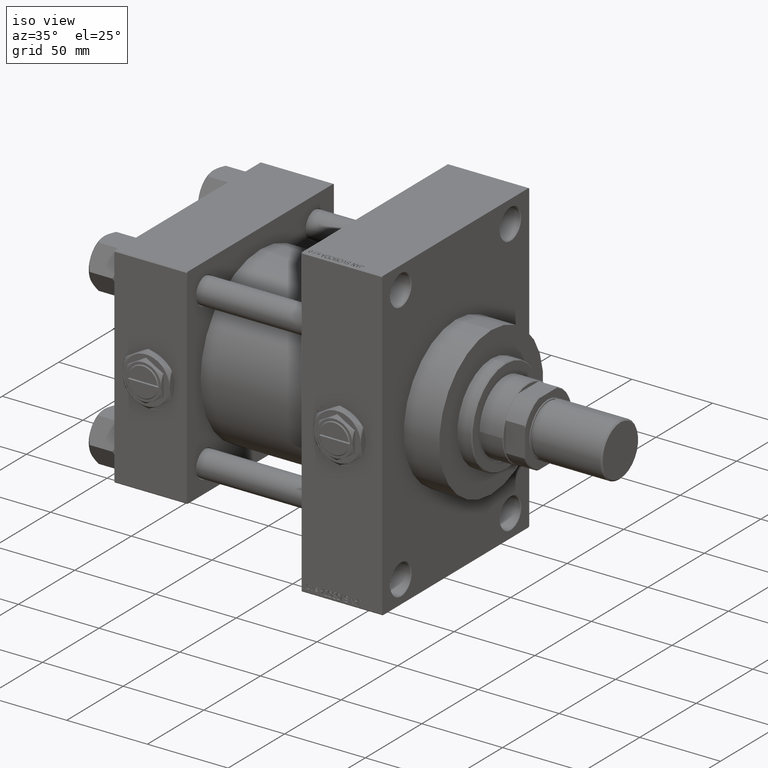
[diagram: clean part render]
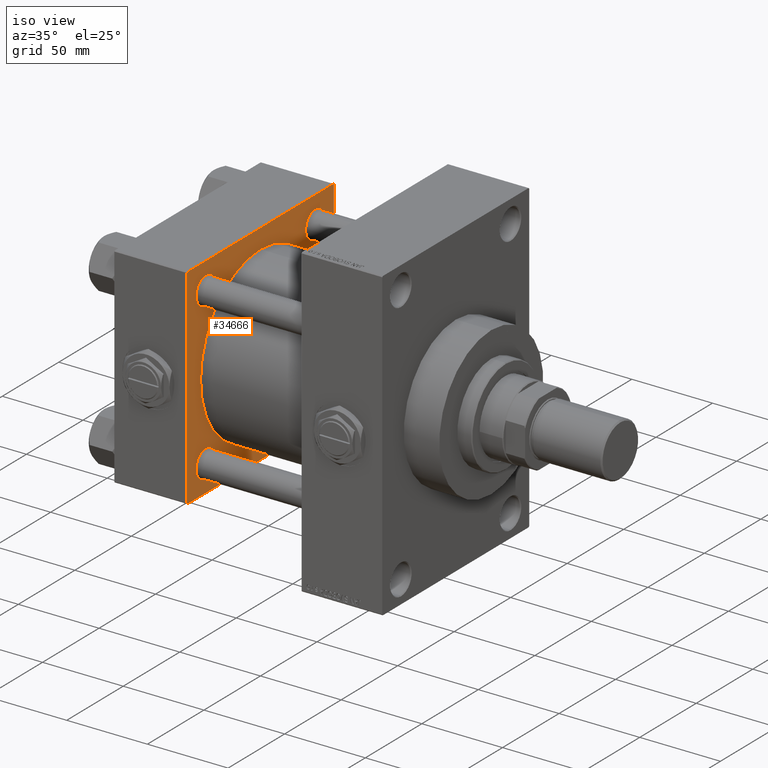
[diagram: same view with one face highlighted and labeled with its STEP entity id]
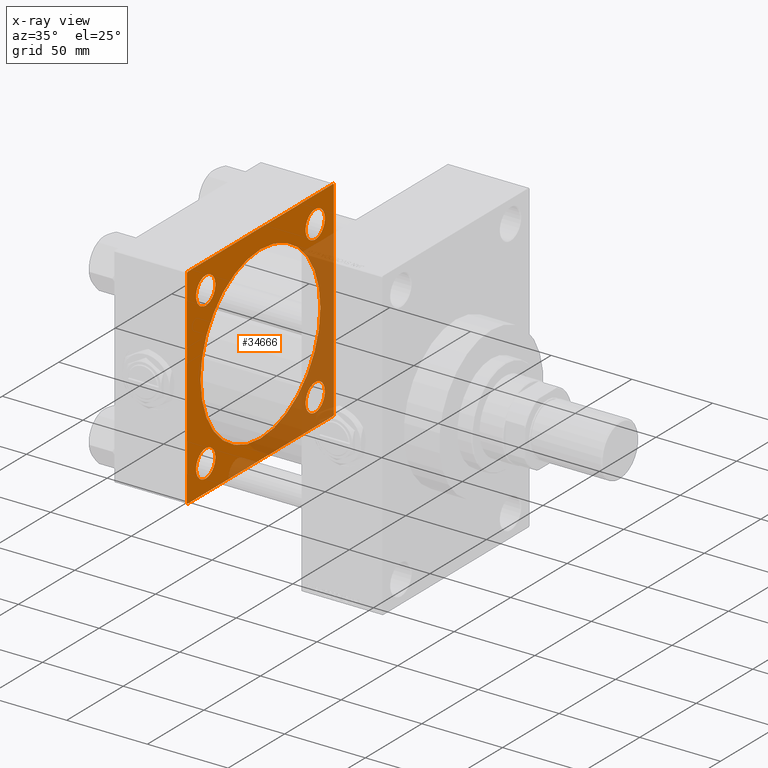
[diagram: x-ray of the same camera — body ghosted, the highlighted face saturated]
A machine part, iso view. The second image highlights one B-rep face of the part: STEP entity #34666.
The next image is the same camera in x-ray: the body ghosted, the highlighted face saturated — about 36% of this face is hidden behind the body in this view.
In plain terms, the highlighted planar face has unit normal (-1, 0, 0).
Its self-contained STEP definition (entity closure, byte-faithful):
#442 = LINE ( 'NONE', #15188, #39818 ) ;
#717 = DIRECTION ( 'NONE',  ( 0.000000000000000000, -1.000000000000000000, -1.067522139062650425E-16 ) ) ;
#1062 = VERTEX_POINT ( 'NONE', #31897 ) ;
#1688 = EDGE_CURVE ( 'NONE', #1062, #37927, #11887, .T. ) ;
#2434 = CARTESIAN_POINT ( 'NONE',  ( 45.00000000000000000, -65.00000000000000000, 64.50000000000000000 ) ) ;
#2763 = EDGE_LOOP ( 'NONE', ( #27315, #7258 ) ) ;
#2826 = VECTOR ( 'NONE', #39338, 1000.000000000000000 ) ;
#3393 = ORIENTED_EDGE ( 'NONE', *, *, #48283, .T. ) ;
#3648 = VERTEX_POINT ( 'NONE', #3854 ) ;
#3854 = CARTESIAN_POINT ( 'NONE',  ( 45.00000000000000000, 3.888542821515762466E-15, -53.00000000000000711 ) ) ;
#4014 = FACE_BOUND ( 'NONE', #2763, .T. ) ;
#4017 = DIRECTION ( 'NONE',  ( -1.000000000000000000, 0.000000000000000000, -0.000000000000000000 ) ) ;
#4499 = DIRECTION ( 'NONE',  ( 0.000000000000000000, 0.000000000000000000, 1.000000000000000000 ) ) ;
#4815 = EDGE_CURVE ( 'NONE', #1062, #10689, #6591, .T. ) ;
#5912 = DIRECTION ( 'NONE',  ( 0.000000000000000000, 0.000000000000000000, 1.000000000000000000 ) ) ;
#6000 = AXIS2_PLACEMENT_3D ( 'NONE', #32425, #47911, #28599 ) ;
#6397 = CIRCLE ( 'NONE', #9659, 8.500000000000007105 ) ;
#6591 = LINE ( 'NONE', #22078, #39237 ) ;
#6634 = CIRCLE ( 'NONE', #17969, 53.00000000000000711 ) ;
#7258 = ORIENTED_EDGE ( 'NONE', *, *, #35864, .T. ) ;
#8327 = DIRECTION ( 'NONE',  ( 0.000000000000000000, 0.000000000000000000, 1.000000000000000000 ) ) ;
#8792 = LINE ( 'NONE', #12602, #20314 ) ;
#8819 = CARTESIAN_POINT ( 'NONE',  ( 45.00000000000000000, 65.00000000000000000, -64.99999999999998579 ) ) ;
#9659 = AXIS2_PLACEMENT_3D ( 'NONE', #48728, #49492, #17724 ) ;
#9830 = CARTESIAN_POINT ( 'NONE',  ( 45.00000000000000000, -2.602085213965210642E-15, 0.000000000000000000 ) ) ;
#10218 = EDGE_CURVE ( 'NONE', #16284, #40444, #28929, .T. ) ;
#10307 = CARTESIAN_POINT ( 'NONE',  ( 45.00000000000000000, -64.49999999999997158, 65.00000000000000000 ) ) ;
#10429 = CIRCLE ( 'NONE', #25026, 8.500000000000007105 ) ;
#10689 = VERTEX_POINT ( 'NONE', #10933 ) ;
#10933 = CARTESIAN_POINT ( 'NONE',  ( 45.00000000000000000, 65.00000000000000000, -64.49999999999995737 ) ) ;
#10966 = CARTESIAN_POINT ( 'NONE',  ( 45.00000000000000000, 48.45000000000000995, -48.45000000000001705 ) ) ;
#11133 = DIRECTION ( 'NONE',  ( -0.000000000000000000, -0.7071067811865672237, -0.7071067811865279218 ) ) ;
#11201 = VECTOR ( 'NONE', #47888, 1000.000000000000000 ) ;
#11268 = VERTEX_POINT ( 'NONE', #10307 ) ;
#11625 = CARTESIAN_POINT ( 'NONE',  ( 45.00000000000000000, 0.000000000000000000, 0.000000000000000000 ) ) ;
#11699 = CARTESIAN_POINT ( 'NONE',  ( 45.00000000000000000, 48.45000000000000995, 48.45000000000001705 ) ) ;
#11887 = LINE ( 'NONE', #8819, #21265 ) ;
#12406 = DIRECTION ( 'NONE',  ( 0.000000000000000000, 0.000000000000000000, 1.000000000000000000 ) ) ;
#12602 = CARTESIAN_POINT ( 'NONE',  ( 45.00000000000000000, -64.49999999999994316, -65.00000000000000000 ) ) ;
#13282 = CIRCLE ( 'NONE', #41721, 8.500000000000007105 ) ;
#13417 = CARTESIAN_POINT ( 'NONE',  ( 45.00000000000000000, -64.49999999999994316, -65.00000000000000000 ) ) ;
#13530 = CIRCLE ( 'NONE', #32998, 8.500000000000007105 ) ;
#14371 = CARTESIAN_POINT ( 'NONE',  ( 45.00000000000000000, 64.49999999999997158, 65.00000000000001421 ) ) ;
#14463 = EDGE_CURVE ( 'NONE', #21431, #34734, #13530, .T. ) ;
#14882 = ORIENTED_EDGE ( 'NONE', *, *, #27381, .F. ) ;
#15029 = EDGE_CURVE ( 'NONE', #18574, #33845, #21663, .T. ) ;
#15181 = CARTESIAN_POINT ( 'NONE',  ( 45.00000000000000000, 65.00000000000000000, 64.49999999999998579 ) ) ;
#15188 = CARTESIAN_POINT ( 'NONE',  ( 45.00000000000000000, 65.00000000000000000, 65.00000000000001421 ) ) ;
#15725 = DIRECTION ( 'NONE',  ( -1.000000000000000000, 0.000000000000000000, -0.000000000000000000 ) ) ;
#15916 = DIRECTION ( 'NONE',  ( 0.000000000000000000, 0.000000000000000000, -1.000000000000000000 ) ) ;
#16284 = VERTEX_POINT ( 'NONE', #45749 ) ;
#16593 = CARTESIAN_POINT ( 'NONE',  ( 45.00000000000000000, 48.45000000000000995, 56.95000000000002416 ) ) ;
#17382 = CIRCLE ( 'NONE', #23876, 8.500000000000007105 ) ;
#17581 = CARTESIAN_POINT ( 'NONE',  ( 45.00000000000000000, -2.602085213965210642E-15, 53.00000000000000711 ) ) ;
#17724 = DIRECTION ( 'NONE',  ( 0.000000000000000000, 0.000000000000000000, 1.000000000000000000 ) ) ;
#17836 = VERTEX_POINT ( 'NONE', #17581 ) ;
#17969 = AXIS2_PLACEMENT_3D ( 'NONE', #9830, #36262, #43897 ) ;
#18260 = DIRECTION ( 'NONE',  ( -0.000000000000000000, 0.7071067811865474617, 0.7071067811865474617 ) ) ;
#18574 = VERTEX_POINT ( 'NONE', #31706 ) ;
#19283 = EDGE_LOOP ( 'NONE', ( #19485, #49367, #14882, #32598, #28527, #26303, #34959, #29321 ) ) ;
#19485 = ORIENTED_EDGE ( 'NONE', *, *, #1688, .F. ) ;
#19926 = CARTESIAN_POINT ( 'NONE',  ( 45.00000000000000000, 64.49999999999997158, 65.00000000000001421 ) ) ;
#20314 = VECTOR ( 'NONE', #43625, 1000.000000000000000 ) ;
#20478 = CARTESIAN_POINT ( 'NONE',  ( 45.00000000000000000, -48.44999999999999574, 39.95000000000001705 ) ) ;
#21265 = VECTOR ( 'NONE', #717, 1000.000000000000000 ) ;
#21431 = VERTEX_POINT ( 'NONE', #45170 ) ;
#21656 = DIRECTION ( 'NONE',  ( 0.000000000000000000, 0.000000000000000000, 1.000000000000000000 ) ) ;
#21663 = CIRCLE ( 'NONE', #28150, 8.500000000000007105 ) ;
#21681 = CARTESIAN_POINT ( 'NONE',  ( 45.00000000000000000, -65.00000000000000000, -64.49999999999991473 ) ) ;
#21994 = LINE ( 'NONE', #14371, #44951 ) ;
#22078 = CARTESIAN_POINT ( 'NONE',  ( 45.00000000000000000, 65.00000000000000000, -64.49999999999995737 ) ) ;
#22656 = CARTESIAN_POINT ( 'NONE',  ( 45.00000000000000000, 65.00000000000000000, 65.00000000000001421 ) ) ;
#23071 = FACE_BOUND ( 'NONE', #28408, .T. ) ;
#23309 = VERTEX_POINT ( 'NONE', #48482 ) ;
#23318 = DIRECTION ( 'NONE',  ( -0.000000000000000000, 0.000000000000000000, 1.000000000000000000 ) ) ;
#23876 = AXIS2_PLACEMENT_3D ( 'NONE', #34363, #49857, #30556 ) ;
#24054 = AXIS2_PLACEMENT_3D ( 'NONE', #48856, #37432, #5912 ) ;
#24164 = EDGE_LOOP ( 'NONE', ( #41522, #40006 ) ) ;
#24189 = CIRCLE ( 'NONE', #30725, 8.500000000000007105 ) ;
#24955 = DIRECTION ( 'NONE',  ( -1.000000000000000000, 0.000000000000000000, -0.000000000000000000 ) ) ;
#25026 = AXIS2_PLACEMENT_3D ( 'NONE', #47842, #24955, #21656 ) ;
#26116 = LINE ( 'NONE', #45196, #26319 ) ;
#26277 = EDGE_LOOP ( 'NONE', ( #3393, #38937 ) ) ;
#26303 = ORIENTED_EDGE ( 'NONE', *, *, #38143, .T. ) ;
#26319 = VECTOR ( 'NONE', #11133, 1000.000000000000000 ) ;
#26463 = DIRECTION ( 'NONE',  ( -1.000000000000000000, 0.000000000000000000, -0.000000000000000000 ) ) ;
#27129 = DIRECTION ( 'NONE',  ( -1.000000000000000000, 0.000000000000000000, -0.000000000000000000 ) ) ;
#27202 = DIRECTION ( 'NONE',  ( 0.000000000000000000, 0.000000000000000000, 1.000000000000000000 ) ) ;
#27315 = ORIENTED_EDGE ( 'NONE', *, *, #15029, .T. ) ;
#27381 = EDGE_CURVE ( 'NONE', #32539, #10689, #442, .T. ) ;
#27478 = EDGE_CURVE ( 'NONE', #33880, #37927, #8792, .T. ) ;
#28150 = AXIS2_PLACEMENT_3D ( 'NONE', #11699, #38908, #27202 ) ;
#28408 = EDGE_LOOP ( 'NONE', ( #28876, #28470 ) ) ;
#28470 = ORIENTED_EDGE ( 'NONE', *, *, #34985, .T. ) ;
#28486 = VERTEX_POINT ( 'NONE', #42830 ) ;
#28527 = ORIENTED_EDGE ( 'NONE', *, *, #35009, .T. ) ;
#28576 = CARTESIAN_POINT ( 'NONE',  ( 45.00000000000000000, -65.00000000000000000, 65.00000000000000000 ) ) ;
#28599 = DIRECTION ( 'NONE',  ( 0.000000000000000000, 0.000000000000000000, 1.000000000000000000 ) ) ;
#28678 = VERTEX_POINT ( 'NONE', #19926 ) ;
#28876 = ORIENTED_EDGE ( 'NONE', *, *, #47717, .T. ) ;
#28929 = CIRCLE ( 'NONE', #24054, 8.500000000000007105 ) ;
#29321 = ORIENTED_EDGE ( 'NONE', *, *, #27478, .T. ) ;
#29832 = EDGE_CURVE ( 'NONE', #17836, #3648, #6634, .T. ) ;
#30463 = FACE_BOUND ( 'NONE', #26277, .T. ) ;
#30556 = DIRECTION ( 'NONE',  ( 0.000000000000000000, 0.000000000000000000, 1.000000000000000000 ) ) ;
#30725 = AXIS2_PLACEMENT_3D ( 'NONE', #33809, #15725, #12406 ) ;
#30960 = FACE_BOUND ( 'NONE', #43670, .T. ) ;
#31706 = CARTESIAN_POINT ( 'NONE',  ( 45.00000000000000000, 48.45000000000000995, 39.95000000000000284 ) ) ;
#31897 = CARTESIAN_POINT ( 'NONE',  ( 45.00000000000000000, 64.49999999999997158, -64.99999999999998579 ) ) ;
#32425 = CARTESIAN_POINT ( 'NONE',  ( 45.00000000000000000, -2.602085213965210642E-15, 0.000000000000000000 ) ) ;
#32539 = VERTEX_POINT ( 'NONE', #15181 ) ;
#32598 = ORIENTED_EDGE ( 'NONE', *, *, #33519, .T. ) ;
#32682 = VERTEX_POINT ( 'NONE', #2434 ) ;
#32998 = AXIS2_PLACEMENT_3D ( 'NONE', #43141, #4017, #4499 ) ;
#33519 = EDGE_CURVE ( 'NONE', #32539, #28678, #21994, .T. ) ;
#33809 = CARTESIAN_POINT ( 'NONE',  ( 45.00000000000000000, -48.44999999999999574, 48.45000000000003126 ) ) ;
#33845 = VERTEX_POINT ( 'NONE', #16593 ) ;
#33848 = LINE ( 'NONE', #22656, #2826 ) ;
#33880 = VERTEX_POINT ( 'NONE', #21681 ) ;
#33926 = ORIENTED_EDGE ( 'NONE', *, *, #29832, .F. ) ;
#34273 = FACE_BOUND ( 'NONE', #24164, .T. ) ;
#34363 = CARTESIAN_POINT ( 'NONE',  ( 45.00000000000000000, 48.45000000000000995, 48.45000000000001705 ) ) ;
#34666 = ADVANCED_FACE ( 'NONE', ( #34273, #23071, #30463, #4014, #30960, #45456 ), #46455, .F. ) ;
#34734 = VERTEX_POINT ( 'NONE', #20478 ) ;
#34959 = ORIENTED_EDGE ( 'NONE', *, *, #46759, .T. ) ;
#34985 = EDGE_CURVE ( 'NONE', #28486, #23309, #13282, .T. ) ;
#35009 = EDGE_CURVE ( 'NONE', #28678, #11268, #33848, .T. ) ;
#35236 = ORIENTED_EDGE ( 'NONE', *, *, #37732, .F. ) ;
#35864 = EDGE_CURVE ( 'NONE', #33845, #18574, #17382, .T. ) ;
#36262 = DIRECTION ( 'NONE',  ( 1.000000000000000000, -0.000000000000000000, 0.000000000000000000 ) ) ;
#36456 = LINE ( 'NONE', #28576, #11201 ) ;
#36838 = CIRCLE ( 'NONE', #6000, 53.00000000000000711 ) ;
#37432 = DIRECTION ( 'NONE',  ( -1.000000000000000000, 0.000000000000000000, -0.000000000000000000 ) ) ;
#37732 = EDGE_CURVE ( 'NONE', #3648, #17836, #36838, .T. ) ;
#37927 = VERTEX_POINT ( 'NONE', #13417 ) ;
#38143 = EDGE_CURVE ( 'NONE', #11268, #32682, #26116, .T. ) ;
#38908 = DIRECTION ( 'NONE',  ( -1.000000000000000000, 0.000000000000000000, -0.000000000000000000 ) ) ;
#38937 = ORIENTED_EDGE ( 'NONE', *, *, #14463, .T. ) ;
#39237 = VECTOR ( 'NONE', #18260, 1000.000000000000114 ) ;
#39338 = DIRECTION ( 'NONE',  ( 0.000000000000000000, -1.000000000000000000, -1.067522139062650425E-16 ) ) ;
#39818 = VECTOR ( 'NONE', #15916, 1000.000000000000000 ) ;
#40006 = ORIENTED_EDGE ( 'NONE', *, *, #48518, .T. ) ;
#40444 = VERTEX_POINT ( 'NONE', #49907 ) ;
#41522 = ORIENTED_EDGE ( 'NONE', *, *, #10218, .T. ) ;
#41721 = AXIS2_PLACEMENT_3D ( 'NONE', #10966, #26463, #8327 ) ;
#42830 = CARTESIAN_POINT ( 'NONE',  ( 45.00000000000000000, 48.45000000000000995, -39.95000000000000284 ) ) ;
#43141 = CARTESIAN_POINT ( 'NONE',  ( 45.00000000000000000, -48.44999999999999574, 48.45000000000003126 ) ) ;
#43625 = DIRECTION ( 'NONE',  ( 0.000000000000000000, 0.7071067811865279218, -0.7071067811865671127 ) ) ;
#43670 = EDGE_LOOP ( 'NONE', ( #33926, #35236 ) ) ;
#43897 = DIRECTION ( 'NONE',  ( 0.000000000000000000, 0.000000000000000000, 1.000000000000000000 ) ) ;
#44951 = VECTOR ( 'NONE', #45388, 1000.000000000000114 ) ;
#44987 = AXIS2_PLACEMENT_3D ( 'NONE', #11625, #27129, #23318 ) ;
#45170 = CARTESIAN_POINT ( 'NONE',  ( 45.00000000000000000, -48.44999999999999574, 56.95000000000003837 ) ) ;
#45196 = CARTESIAN_POINT ( 'NONE',  ( 45.00000000000000000, -65.00000000000000000, 64.50000000000000000 ) ) ;
#45388 = DIRECTION ( 'NONE',  ( 0.000000000000000000, -0.7071067811865474617, 0.7071067811865474617 ) ) ;
#45456 = FACE_OUTER_BOUND ( 'NONE', #19283, .T. ) ;
#45749 = CARTESIAN_POINT ( 'NONE',  ( 45.00000000000000000, -48.44999999999999574, -56.95000000000003837 ) ) ;
#46455 = PLANE ( 'NONE',  #44987 ) ;
#46759 = EDGE_CURVE ( 'NONE', #32682, #33880, #36456, .T. ) ;
#47717 = EDGE_CURVE ( 'NONE', #23309, #28486, #10429, .T. ) ;
#47842 = CARTESIAN_POINT ( 'NONE',  ( 45.00000000000000000, 48.45000000000000995, -48.45000000000001705 ) ) ;
#47888 = DIRECTION ( 'NONE',  ( 0.000000000000000000, 0.000000000000000000, -1.000000000000000000 ) ) ;
#47911 = DIRECTION ( 'NONE',  ( 1.000000000000000000, -0.000000000000000000, 0.000000000000000000 ) ) ;
#48283 = EDGE_CURVE ( 'NONE', #34734, #21431, #24189, .T. ) ;
#48482 = CARTESIAN_POINT ( 'NONE',  ( 45.00000000000000000, 48.45000000000000995, -56.95000000000002416 ) ) ;
#48518 = EDGE_CURVE ( 'NONE', #40444, #16284, #6397, .T. ) ;
#48728 = CARTESIAN_POINT ( 'NONE',  ( 45.00000000000000000, -48.44999999999999574, -48.45000000000003126 ) ) ;
#48856 = CARTESIAN_POINT ( 'NONE',  ( 45.00000000000000000, -48.44999999999999574, -48.45000000000003126 ) ) ;
#49367 = ORIENTED_EDGE ( 'NONE', *, *, #4815, .T. ) ;
#49492 = DIRECTION ( 'NONE',  ( -1.000000000000000000, 0.000000000000000000, -0.000000000000000000 ) ) ;
#49857 = DIRECTION ( 'NONE',  ( -1.000000000000000000, 0.000000000000000000, -0.000000000000000000 ) ) ;
#49907 = CARTESIAN_POINT ( 'NONE',  ( 45.00000000000000000, -48.44999999999999574, -39.95000000000001705 ) ) ;